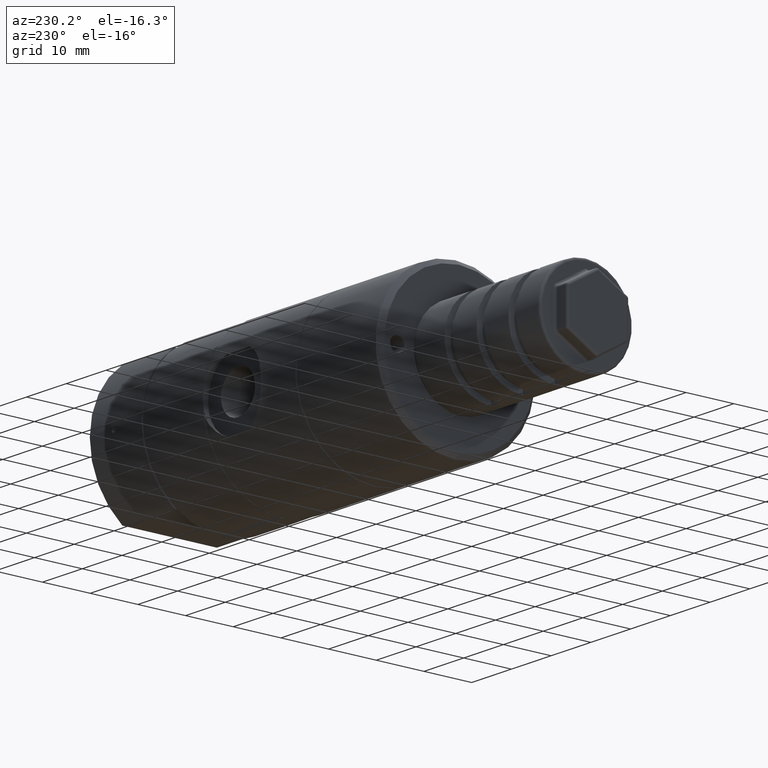
[diagram: clean part render]
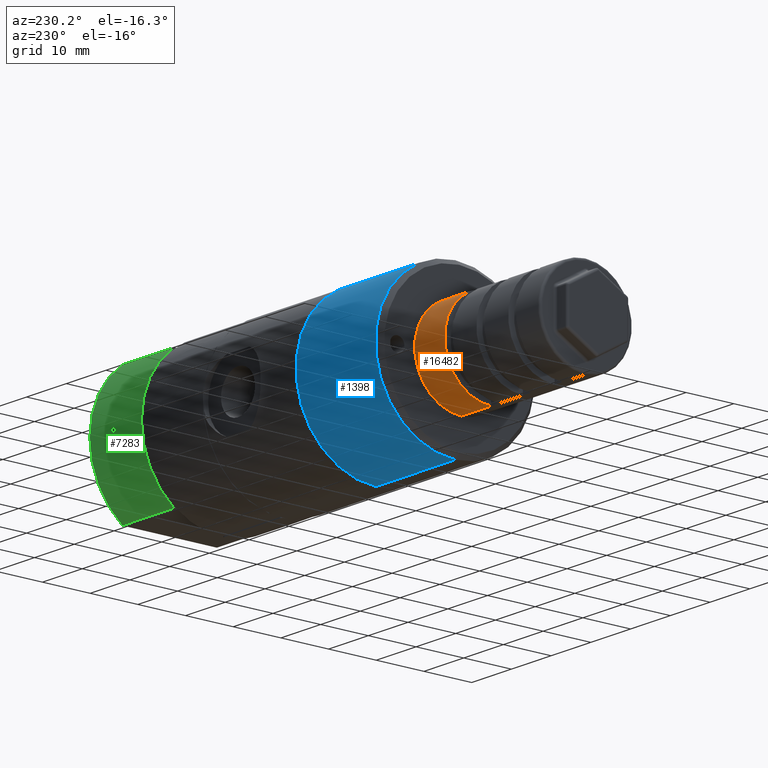
[diagram: same view with three faces highlighted in distinct colors, each labeled with its STEP entity id]
A machine part, auxiliary view with three faces highlighted in distinct colors.
Their STEP definitions:

[orange] entity #16482 — the highlighted cylindrical surface (partial cylindrical patch) has radius 9.75 mm, axis along (1, 0, 0).
#1342 = ORIENTED_EDGE ( 'NONE', *, *, #7218, .F. ) ;
#2613 = AXIS2_PLACEMENT_3D ( 'NONE', #17216, #4069, #6788 ) ;
#2639 = DIRECTION ( 'NONE',  ( 1.000000000000000000, 0.0000000000000000000, 0.0000000000000000000 ) ) ;
#2999 = DIRECTION ( 'NONE',  ( 1.000000000000000000, 0.0000000000000000000, 0.0000000000000000000 ) ) ;
#3160 = FACE_OUTER_BOUND ( 'NONE', #17259, .T. ) ;
#3264 = AXIS2_PLACEMENT_3D ( 'NONE', #9915, #2639, #4261 ) ;
#4069 = DIRECTION ( 'NONE',  ( -1.000000000000000000, 0.0000000000000000000, 0.0000000000000000000 ) ) ;
#4233 = VECTOR ( 'NONE', #2999, 1000.000000000000000 ) ;
#4261 = DIRECTION ( 'NONE',  ( 0.0000000000000000000, -2.775557561562890400E-016, -1.000000000000000000 ) ) ;
#5858 = DIRECTION ( 'NONE',  ( -1.000000000000000000, 0.0000000000000000000, 0.0000000000000000000 ) ) ;
#6788 = DIRECTION ( 'NONE',  ( 0.0000000000000000000, 2.775557561562890400E-016, 1.000000000000000000 ) ) ;
#7218 = EDGE_CURVE ( 'NONE', #17504, #11122, #9663, .T. ) ;
#7746 = VECTOR ( 'NONE', #13585, 1000.000000000000000 ) ;
#8257 = AXIS2_PLACEMENT_3D ( 'NONE', #13219, #5858, #16026 ) ;
#8284 = ORIENTED_EDGE ( 'NONE', *, *, #8450, .T. ) ;
#8365 = CIRCLE ( 'NONE', #8257, 9.750000000000000000 ) ;
#8450 = EDGE_CURVE ( 'NONE', #12068, #11122, #16019, .T. ) ;
#8657 = ORIENTED_EDGE ( 'NONE', *, *, #14872, .T. ) ;
#8785 = CARTESIAN_POINT ( 'NONE',  ( -73.40000000000000600, -2.706168622523817900E-015, -9.750000000000000000 ) ) ;
#9663 = LINE ( 'NONE', #17772, #4233 ) ;
#9915 = CARTESIAN_POINT ( 'NONE',  ( -104.8999999999999900, 0.0000000000000000000, 0.0000000000000000000 ) ) ;
#10415 = CYLINDRICAL_SURFACE ( 'NONE', #3264, 9.750000000000000000 ) ;
#11122 = VERTEX_POINT ( 'NONE', #8785 ) ;
#12068 = VERTEX_POINT ( 'NONE', #15796 ) ;
#12486 = ORIENTED_EDGE ( 'NONE', *, *, #16796, .F. ) ;
#12787 = CARTESIAN_POINT ( 'NONE',  ( -80.90000000000000600, 2.706168622523819900E-015, 9.750000000000000000 ) ) ;
#13202 = LINE ( 'NONE', #17690, #7746 ) ;
#13219 = CARTESIAN_POINT ( 'NONE',  ( -80.90000000000000600, 0.0000000000000000000, 0.0000000000000000000 ) ) ;
#13585 = DIRECTION ( 'NONE',  ( 1.000000000000000000, 0.0000000000000000000, 0.0000000000000000000 ) ) ;
#14872 = EDGE_CURVE ( 'NONE', #15429, #12068, #13202, .T. ) ;
#15034 = CARTESIAN_POINT ( 'NONE',  ( -80.90000000000000600, -2.706168622523819900E-015, -9.750000000000000000 ) ) ;
#15429 = VERTEX_POINT ( 'NONE', #12787 ) ;
#15796 = CARTESIAN_POINT ( 'NONE',  ( -73.40000000000000600, 3.900199251692487600E-015, 9.750000000000000000 ) ) ;
#16019 = CIRCLE ( 'NONE', #2613, 9.750000000000000000 ) ;
#16026 = DIRECTION ( 'NONE',  ( 0.0000000000000000000, 2.775557561562890400E-016, 1.000000000000000000 ) ) ;
#16482 = ADVANCED_FACE ( 'NONE', ( #3160 ), #10415, .T. ) ;
#16796 = EDGE_CURVE ( 'NONE', #15429, #17504, #8365, .T. ) ;
#17216 = CARTESIAN_POINT ( 'NONE',  ( -73.40000000000000600, 0.0000000000000000000, 0.0000000000000000000 ) ) ;
#17259 = EDGE_LOOP ( 'NONE', ( #12486, #8657, #8284, #1342 ) ) ;
#17504 = VERTEX_POINT ( 'NONE', #15034 ) ;
#17690 = CARTESIAN_POINT ( 'NONE',  ( -104.8999999999999900, 3.900199251692487600E-015, 9.750000000000000000 ) ) ;
#17772 = CARTESIAN_POINT ( 'NONE',  ( -104.8999999999999900, -2.706168622523817900E-015, -9.750000000000000000 ) ) ;

[blue] entity #1398 — the highlighted cylindrical surface (partial cylindrical patch) has radius 16.75 mm, axis along (1, 0, 0).
#408 = LINE ( 'NONE', #16722, #4912 ) ;
#864 = AXIS2_PLACEMENT_3D ( 'NONE', #16292, #4800, #16233 ) ;
#1043 = CARTESIAN_POINT ( 'NONE',  ( -51.89999999999999900, 2.051283388571816900E-015, 16.75000000000000000 ) ) ;
#1398 = ADVANCED_FACE ( 'NONE', ( #8975 ), #16220, .T. ) ;
#1500 = DIRECTION ( 'NONE',  ( 1.000000000000000000, 0.0000000000000000000, 0.0000000000000000000 ) ) ;
#2867 = ORIENTED_EDGE ( 'NONE', *, *, #3478, .T. ) ;
#3081 = CARTESIAN_POINT ( 'NONE',  ( -71.90000000000000600, 2.051283388571816900E-015, 16.75000000000000000 ) ) ;
#3170 = EDGE_LOOP ( 'NONE', ( #2867, #16173, #8051, #13434 ) ) ;
#3306 = CARTESIAN_POINT ( 'NONE',  ( -51.89999999999999900, 2.051283388571816900E-015, 16.75000000000000000 ) ) ;
#3478 = EDGE_CURVE ( 'NONE', #15056, #9351, #13891, .T. ) ;
#3589 = EDGE_CURVE ( 'NONE', #17734, #14315, #14546, .T. ) ;
#3604 = DIRECTION ( 'NONE',  ( 0.0000000000000000000, 0.0000000000000000000, 1.000000000000000000 ) ) ;
#4423 = CARTESIAN_POINT ( 'NONE',  ( -51.89999999999999900, 0.0000000000000000000, 0.0000000000000000000 ) ) ;
#4472 = EDGE_CURVE ( 'NONE', #9351, #14315, #7595, .T. ) ;
#4800 = DIRECTION ( 'NONE',  ( 1.000000000000000000, 0.0000000000000000000, 0.0000000000000000000 ) ) ;
#4912 = VECTOR ( 'NONE', #15196, 1000.000000000000000 ) ;
#6022 = VECTOR ( 'NONE', #8119, 1000.000000000000000 ) ;
#7390 = AXIS2_PLACEMENT_3D ( 'NONE', #4423, #1500, #14326 ) ;
#7595 = LINE ( 'NONE', #3306, #6022 ) ;
#8050 = CARTESIAN_POINT ( 'NONE',  ( -71.90000000000000600, 0.0000000000000000000, 0.0000000000000000000 ) ) ;
#8051 = ORIENTED_EDGE ( 'NONE', *, *, #3589, .F. ) ;
#8119 = DIRECTION ( 'NONE',  ( 1.000000000000000000, 0.0000000000000000000, 0.0000000000000000000 ) ) ;
#8805 = CARTESIAN_POINT ( 'NONE',  ( -51.89999999999999900, 0.0000000000000000000, -16.75000000000000000 ) ) ;
#8975 = FACE_OUTER_BOUND ( 'NONE', #3170, .T. ) ;
#9148 = EDGE_CURVE ( 'NONE', #15056, #17734, #408, .T. ) ;
#9351 = VERTEX_POINT ( 'NONE', #3081 ) ;
#9593 = AXIS2_PLACEMENT_3D ( 'NONE', #8050, #15342, #3604 ) ;
#11421 = CARTESIAN_POINT ( 'NONE',  ( -71.90000000000000600, 0.0000000000000000000, -16.75000000000000000 ) ) ;
#13434 = ORIENTED_EDGE ( 'NONE', *, *, #9148, .F. ) ;
#13891 = CIRCLE ( 'NONE', #9593, 16.75000000000000000 ) ;
#14315 = VERTEX_POINT ( 'NONE', #1043 ) ;
#14326 = DIRECTION ( 'NONE',  ( 0.0000000000000000000, 0.0000000000000000000, -1.000000000000000000 ) ) ;
#14546 = CIRCLE ( 'NONE', #7390, 16.75000000000000000 ) ;
#15056 = VERTEX_POINT ( 'NONE', #11421 ) ;
#15196 = DIRECTION ( 'NONE',  ( 1.000000000000000000, 0.0000000000000000000, 0.0000000000000000000 ) ) ;
#15342 = DIRECTION ( 'NONE',  ( 1.000000000000000000, -0.0000000000000000000, -0.0000000000000000000 ) ) ;
#16173 = ORIENTED_EDGE ( 'NONE', *, *, #4472, .T. ) ;
#16220 = CYLINDRICAL_SURFACE ( 'NONE', #864, 16.75000000000000000 ) ;
#16233 = DIRECTION ( 'NONE',  ( 0.0000000000000000000, 0.0000000000000000000, -1.000000000000000000 ) ) ;
#16292 = CARTESIAN_POINT ( 'NONE',  ( -51.89999999999999900, 0.0000000000000000000, 0.0000000000000000000 ) ) ;
#16722 = CARTESIAN_POINT ( 'NONE',  ( -51.89999999999999900, 0.0000000000000000000, -16.75000000000000000 ) ) ;
#17734 = VERTEX_POINT ( 'NONE', #8805 ) ;

[green] entity #7283 — the highlighted cylindrical surface (partial cylindrical patch) has radius 16.75 mm, axis along (1, 0, 0).
#107 = CARTESIAN_POINT ( 'NONE',  ( -5.554137304171497600, 16.74821745851488000, 0.2612109618542506900 ) ) ;
#208 = CARTESIAN_POINT ( 'NONE',  ( -5.999999999999738900, 16.74253565025314200, -0.5000000000026459900 ) ) ;
#265 = CARTESIAN_POINT ( 'NONE',  ( -6.132122621792182000, 16.74253565025320600, 0.4999999999999901200 ) ) ;
#350 = ORIENTED_EDGE ( 'NONE', *, *, #4820, .F. ) ;
#403 = CARTESIAN_POINT ( 'NONE',  ( -6.500110097996419300, 16.75000328650620700, 0.1314671213618137900 ) ) ;
#446 = DIRECTION ( 'NONE',  ( -1.000000000000000000, -0.0000000000000000000, -0.0000000000000000000 ) ) ;
#1228 = ORIENTED_EDGE ( 'NONE', *, *, #12596, .T. ) ;
#1590 = CARTESIAN_POINT ( 'NONE',  ( 0.0000000000000000000, 0.0000000000000000000, 0.0000000000000000000 ) ) ;
#1776 = DIRECTION ( 'NONE',  ( 1.000000000000000000, 0.0000000000000000000, 0.0000000000000000000 ) ) ;
#1917 = CARTESIAN_POINT ( 'NONE',  ( -5.999999999999738900, 16.74253565025314200, -0.5000000000026459900 ) ) ;
#1945 = CARTESIAN_POINT ( 'NONE',  ( 0.0000000000000000000, 9.915266007525970000, 13.50000000000000000 ) ) ;
#2079 = DIRECTION ( 'NONE',  ( 0.0000000000000000000, 0.0000000000000000000, -1.000000000000000000 ) ) ;
#2282 = CARTESIAN_POINT ( 'NONE',  ( 0.0000000000000000000, 9.915266007525961100, -13.50000000000000000 ) ) ;
#2413 = CARTESIAN_POINT ( 'NONE',  ( -13.00000000000000000, 9.915266007525961100, -13.50000000000000000 ) ) ;
#2546 = VERTEX_POINT ( 'NONE', #1945 ) ;
#2551 = ORIENTED_EDGE ( 'NONE', *, *, #8203, .F. ) ;
#2884 = EDGE_CURVE ( 'NONE', #4976, #14271, #3661, .T. ) ;
#2962 = ORIENTED_EDGE ( 'NONE', *, *, #2884, .T. ) ;
#3196 = EDGE_LOOP ( 'NONE', ( #13529, #2551 ) ) ;
#3382 = B_SPLINE_CURVE_WITH_KNOTS ( 'NONE', 3,
 ( #15923, #17376, #17309, #107, #11534, #14329, #17248, #15988, #11664, #5697 ),
 .UNSPECIFIED., .F., .F.,
 ( 4, 2, 2, 2, 4 ),
 ( 0.0000000000000000000, 0.0003908288222013149700, 0.0007816576444026299400, 0.001172486466603944600, 0.001563315288805259500 ),
 .UNSPECIFIED. ) ;
#3497 = VECTOR ( 'NONE', #1776, 1000.000000000000000 ) ;
#3661 = CIRCLE ( 'NONE', #15553, 16.75000000000000000 ) ;
#4525 = CARTESIAN_POINT ( 'NONE',  ( -6.446043505978494200, 16.74822230818077200, 0.2609321832075058300 ) ) ;
#4693 = CARTESIAN_POINT ( 'NONE',  ( 0.0000000000000000000, 9.915266007525961100, -13.50000000000000000 ) ) ;
#4820 = EDGE_CURVE ( 'NONE', #8080, #2546, #7358, .T. ) ;
#4943 = CARTESIAN_POINT ( 'NONE',  ( -13.00000000000000000, 9.915266007525961100, 13.50000000000000000 ) ) ;
#4976 = VERTEX_POINT ( 'NONE', #2413 ) ;
#5697 = CARTESIAN_POINT ( 'NONE',  ( -5.999999999999738900, 16.74253565025314200, -0.5000000000026459900 ) ) ;
#5730 = ORIENTED_EDGE ( 'NONE', *, *, #9438, .T. ) ;
#6125 = DIRECTION ( 'NONE',  ( 0.0000000000000000000, 0.0000000000000000000, -1.000000000000000000 ) ) ;
#7165 = CYLINDRICAL_SURFACE ( 'NONE', #10217, 16.75000000000000000 ) ;
#7283 = ADVANCED_FACE ( 'NONE', ( #11037, #9902 ), #7165, .T. ) ;
#7358 = CIRCLE ( 'NONE', #15069, 16.75000000000000000 ) ;
#8065 = VERTEX_POINT ( 'NONE', #1917 ) ;
#8080 = VERTEX_POINT ( 'NONE', #2282 ) ;
#8203 = EDGE_CURVE ( 'NONE', #8065, #12690, #18348, .T. ) ;
#8261 = LINE ( 'NONE', #16256, #3497 ) ;
#9030 = CARTESIAN_POINT ( 'NONE',  ( -6.499889552449503500, 16.74999670305934200, -0.1323032481422371500 ) ) ;
#9418 = VECTOR ( 'NONE', #446, 1000.000000000000000 ) ;
#9438 = EDGE_CURVE ( 'NONE', #8080, #4976, #13281, .T. ) ;
#9902 = FACE_OUTER_BOUND ( 'NONE', #11789, .T. ) ;
#10217 = AXIS2_PLACEMENT_3D ( 'NONE', #14978, #16508, #2079 ) ;
#10296 = CARTESIAN_POINT ( 'NONE',  ( -6.130505205652177400, 16.74253565025321700, -0.5000000000001020300 ) ) ;
#10341 = DIRECTION ( 'NONE',  ( 1.000000000000000000, 0.0000000000000000000, 0.0000000000000000000 ) ) ;
#10358 = CARTESIAN_POINT ( 'NONE',  ( -6.000000000000000000, 16.74253565025320300, 0.4999999999999900100 ) ) ;
#11037 = FACE_BOUND ( 'NONE', #3196, .T. ) ;
#11534 = CARTESIAN_POINT ( 'NONE',  ( -5.500046356743422600, 16.74999861621670000, 0.1306328507711879400 ) ) ;
#11664 = CARTESIAN_POINT ( 'NONE',  ( -5.869465233626183200, 16.74253565025322400, -0.4999999999998779300 ) ) ;
#11768 = CARTESIAN_POINT ( 'NONE',  ( -6.261047715664640000, 16.74431660045894100, -0.4459290441491586800 ) ) ;
#11789 = EDGE_LOOP ( 'NONE', ( #2962, #1228, #350, #5730 ) ) ;
#12596 = EDGE_CURVE ( 'NONE', #14271, #2546, #8261, .T. ) ;
#12690 = VERTEX_POINT ( 'NONE', #18209 ) ;
#13230 = CARTESIAN_POINT ( 'NONE',  ( -6.445560933184255600, 16.74820936851850600, -0.2616755187049087900 ) ) ;
#13281 = LINE ( 'NONE', #4693, #9418 ) ;
#13333 = DIRECTION ( 'NONE',  ( 0.0000000000000000000, 0.0000000000000000000, -1.000000000000000000 ) ) ;
#13529 = ORIENTED_EDGE ( 'NONE', *, *, #15129, .F. ) ;
#14271 = VERTEX_POINT ( 'NONE', #4943 ) ;
#14329 = CARTESIAN_POINT ( 'NONE',  ( -5.499953706306071100, 16.75000138190122800, -0.1302777466380867800 ) ) ;
#14681 = CARTESIAN_POINT ( 'NONE',  ( -6.261564534805771100, 16.74432476037438300, 0.4456729827921622200 ) ) ;
#14978 = CARTESIAN_POINT ( 'NONE',  ( 0.0000000000000000000, 0.0000000000000000000, 0.0000000000000000000 ) ) ;
#15069 = AXIS2_PLACEMENT_3D ( 'NONE', #1590, #10341, #13333 ) ;
#15129 = EDGE_CURVE ( 'NONE', #12690, #8065, #3382, .T. ) ;
#15553 = AXIS2_PLACEMENT_3D ( 'NONE', #17654, #17721, #6125 ) ;
#15923 = CARTESIAN_POINT ( 'NONE',  ( -6.000000000000000000, 16.74253565025320300, 0.4999999999999900100 ) ) ;
#15988 = CARTESIAN_POINT ( 'NONE',  ( -5.739695100534230000, 16.74429907747760300, -0.4468461571412695200 ) ) ;
#16256 = CARTESIAN_POINT ( 'NONE',  ( 0.0000000000000000000, 9.915266007525961100, 13.50000000000000000 ) ) ;
#16508 = DIRECTION ( 'NONE',  ( 1.000000000000000000, 0.0000000000000000000, 0.0000000000000000000 ) ) ;
#17248 = CARTESIAN_POINT ( 'NONE',  ( -5.553030382377142100, 16.74824094627281600, -0.2600928483443540900 ) ) ;
#17309 = CARTESIAN_POINT ( 'NONE',  ( -5.738629039030136000, 16.74432170239838100, 0.4457689209511725400 ) ) ;
#17376 = CARTESIAN_POINT ( 'NONE',  ( -5.867847451126272600, 16.74253565025320300, 0.4999999999999901200 ) ) ;
#17654 = CARTESIAN_POINT ( 'NONE',  ( -13.00000000000000000, 0.0000000000000000000, 0.0000000000000000000 ) ) ;
#17721 = DIRECTION ( 'NONE',  ( 1.000000000000000000, 0.0000000000000000000, 0.0000000000000000000 ) ) ;
#18209 = CARTESIAN_POINT ( 'NONE',  ( -6.000000000000000000, 16.74253565025320300, 0.4999999999999900100 ) ) ;
#18348 = B_SPLINE_CURVE_WITH_KNOTS ( 'NONE', 3,
 ( #208, #10296, #11768, #13230, #9030, #403, #4525, #14681, #265, #10358 ),
 .UNSPECIFIED., .F., .F.,
 ( 4, 2, 2, 2, 4 ),
 ( 0.001563315288805259500, 0.001954055604457648100, 0.002344795920110036600, 0.002735536235762425400, 0.003126276551414813900 ),
 .UNSPECIFIED. ) ;